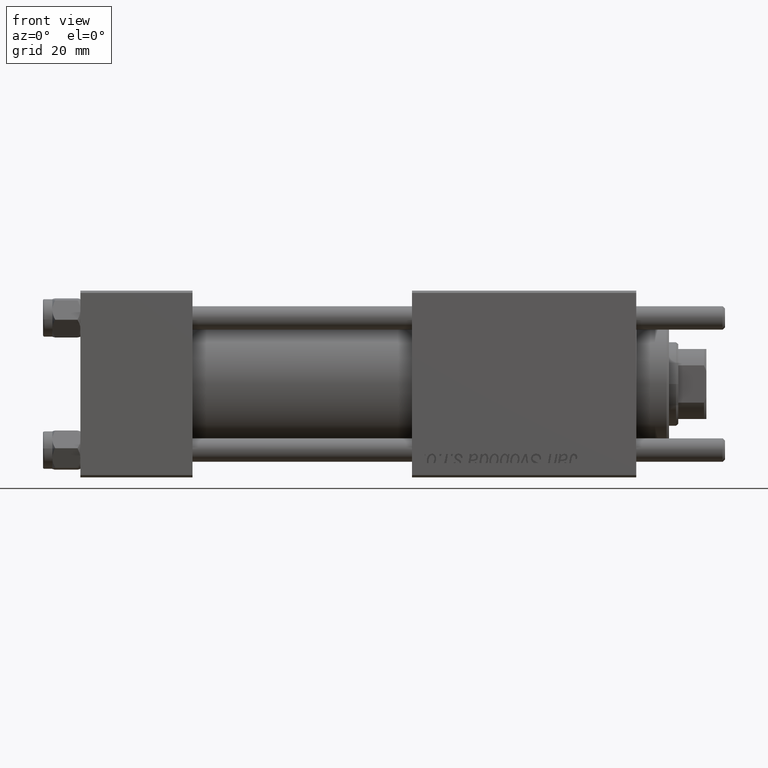
[diagram: clean part render]
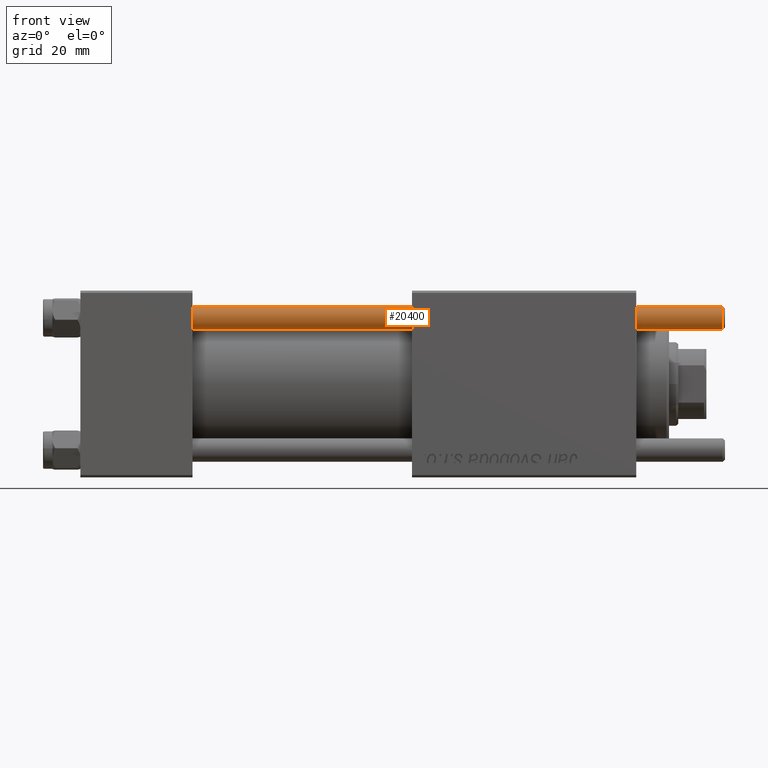
[diagram: same view with one face highlighted and labeled with its STEP entity id]
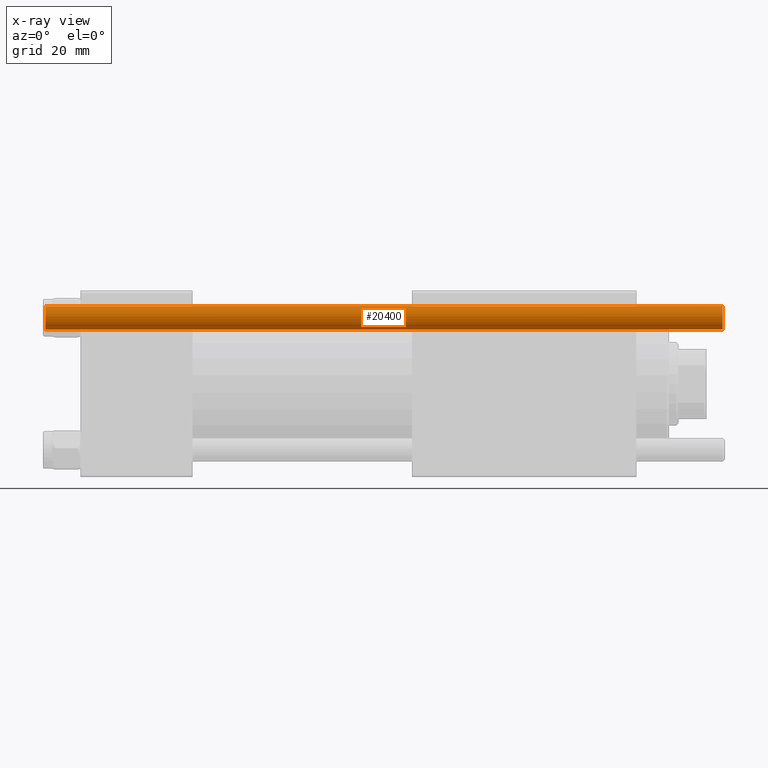
[diagram: x-ray of the same camera — body ghosted, the highlighted face saturated]
A machine part, front view. The second image highlights one B-rep face of the part: STEP entity #20400.
The next image is the same camera in x-ray: the body ghosted, the highlighted face saturated — about 0% of this face is hidden behind the body in this view.
In plain terms, the highlighted cylindrical surface (edge-blend (fillet) strip) has radius 2.5 mm, axis along (-1, 0, -0).
Its self-contained STEP definition (entity closure, byte-faithful):
#2455 = LINE ( 'NONE', #33103, #17405 ) ;
#3495 = FACE_OUTER_BOUND ( 'NONE', #29487, .T. ) ;
#4987 = AXIS2_PLACEMENT_3D ( 'NONE', #52949, #22289, #10211 ) ;
#7066 = VERTEX_POINT ( 'NONE', #29601 ) ;
#7489 = ORIENTED_EDGE ( 'NONE', *, *, #9298, .F. ) ;
#9298 = EDGE_CURVE ( 'NONE', #38260, #7066, #28490, .T. ) ;
#10211 = DIRECTION ( 'NONE',  ( 1.000000000000000000, 0.000000000000000000, 0.000000000000000000 ) ) ;
#13500 = CARTESIAN_POINT ( 'NONE',  ( 2.500000000000000000, 3.061616997868383141E-16, 145.5000000000000284 ) ) ;
#14958 = ORIENTED_EDGE ( 'NONE', *, *, #41748, .T. ) ;
#16658 = CARTESIAN_POINT ( 'NONE',  ( -2.500000000000000000, 0.000000000000000000, 146.0000000000000000 ) ) ;
#16837 = CARTESIAN_POINT ( 'NONE',  ( 2.500000000000000000, 3.061616997868383141E-16, 0.5000000000000559552 ) ) ;
#17405 = VECTOR ( 'NONE', #41980, 1000.000000000000000 ) ;
#18299 = ORIENTED_EDGE ( 'NONE', *, *, #23647, .T. ) ;
#20400 = ADVANCED_FACE ( 'NONE', ( #3495 ), #20969, .T. ) ;
#20969 = CYLINDRICAL_SURFACE ( 'NONE', #23221, 2.500000000000000000 ) ;
#22289 = DIRECTION ( 'NONE',  ( -0.000000000000000000, -0.000000000000000000, 1.000000000000000000 ) ) ;
#23221 = AXIS2_PLACEMENT_3D ( 'NONE', #38443, #55948, #51646 ) ;
#23647 = EDGE_CURVE ( 'NONE', #43539, #49304, #2455, .T. ) ;
#28490 = LINE ( 'NONE', #16658, #33363 ) ;
#29487 = EDGE_LOOP ( 'NONE', ( #45289, #18299, #14958, #7489 ) ) ;
#29601 = CARTESIAN_POINT ( 'NONE',  ( -2.500000000000000000, 0.000000000000000000, 0.5000000000000559552 ) ) ;
#29658 = CIRCLE ( 'NONE', #4987, 2.500000000000000000 ) ;
#31710 = AXIS2_PLACEMENT_3D ( 'NONE', #48963, #38962, #56469 ) ;
#33103 = CARTESIAN_POINT ( 'NONE',  ( 2.500000000000000000, 3.061616997868383141E-16, 146.0000000000000000 ) ) ;
#33363 = VECTOR ( 'NONE', #45987, 1000.000000000000000 ) ;
#38260 = VERTEX_POINT ( 'NONE', #38921 ) ;
#38443 = CARTESIAN_POINT ( 'NONE',  ( 0.000000000000000000, 0.000000000000000000, 146.0000000000000000 ) ) ;
#38921 = CARTESIAN_POINT ( 'NONE',  ( -2.500000000000000000, 0.000000000000000000, 145.5000000000000284 ) ) ;
#38962 = DIRECTION ( 'NONE',  ( 0.000000000000000000, 0.000000000000000000, -1.000000000000000000 ) ) ;
#41748 = EDGE_CURVE ( 'NONE', #49304, #7066, #29658, .T. ) ;
#41980 = DIRECTION ( 'NONE',  ( -0.000000000000000000, -0.000000000000000000, -1.000000000000000000 ) ) ;
#43539 = VERTEX_POINT ( 'NONE', #13500 ) ;
#45289 = ORIENTED_EDGE ( 'NONE', *, *, #51648, .T. ) ;
#45987 = DIRECTION ( 'NONE',  ( -0.000000000000000000, -0.000000000000000000, -1.000000000000000000 ) ) ;
#48963 = CARTESIAN_POINT ( 'NONE',  ( 0.000000000000000000, 0.000000000000000000, 145.5000000000000284 ) ) ;
#49304 = VERTEX_POINT ( 'NONE', #16837 ) ;
#51070 = CIRCLE ( 'NONE', #31710, 2.500000000000000000 ) ;
#51646 = DIRECTION ( 'NONE',  ( -1.000000000000000000, 0.000000000000000000, 0.000000000000000000 ) ) ;
#51648 = EDGE_CURVE ( 'NONE', #38260, #43539, #51070, .T. ) ;
#52949 = CARTESIAN_POINT ( 'NONE',  ( 0.000000000000000000, 0.000000000000000000, 0.5000000000000559552 ) ) ;
#55948 = DIRECTION ( 'NONE',  ( -0.000000000000000000, -0.000000000000000000, -1.000000000000000000 ) ) ;
#56469 = DIRECTION ( 'NONE',  ( 1.000000000000000000, 0.000000000000000000, 0.000000000000000000 ) ) ;